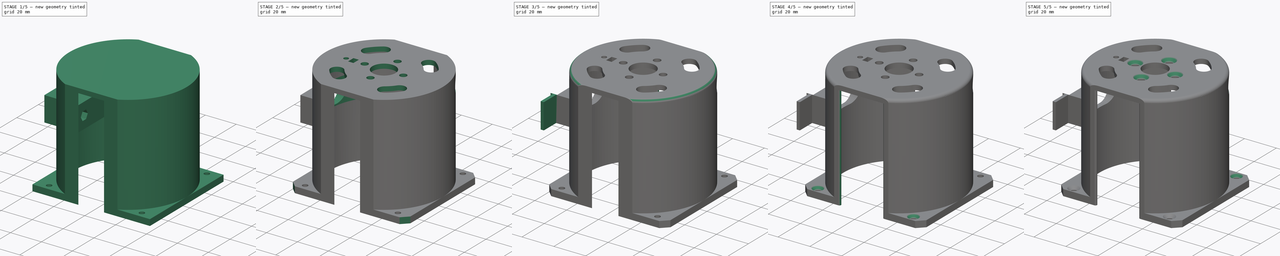
[diagram: build sequence overview — one tinted view per stage of 5, left to right]
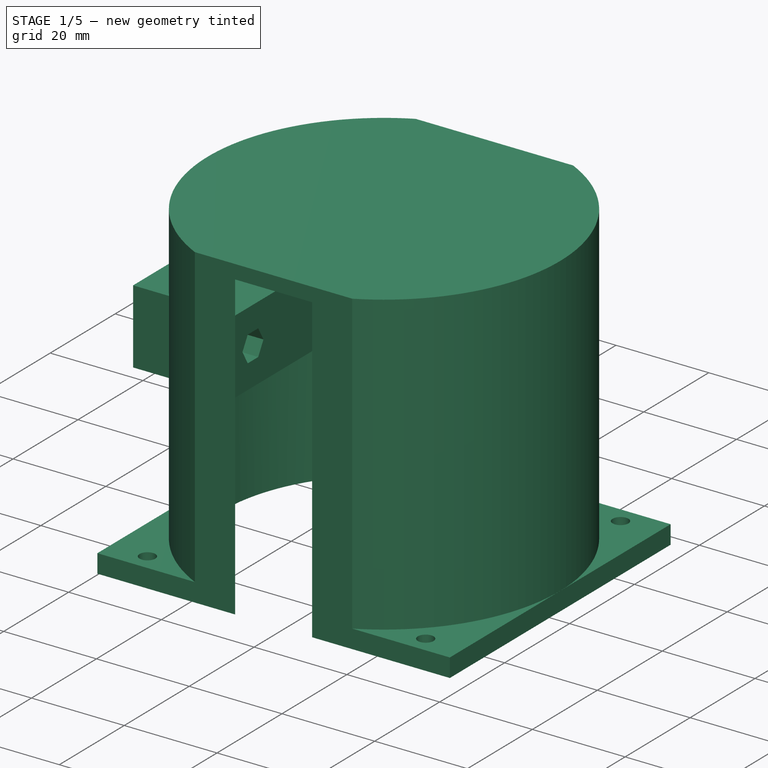
[diagram: stage 1 of 5 — iso view after this stage's code; geometry added in this stage tinted green]
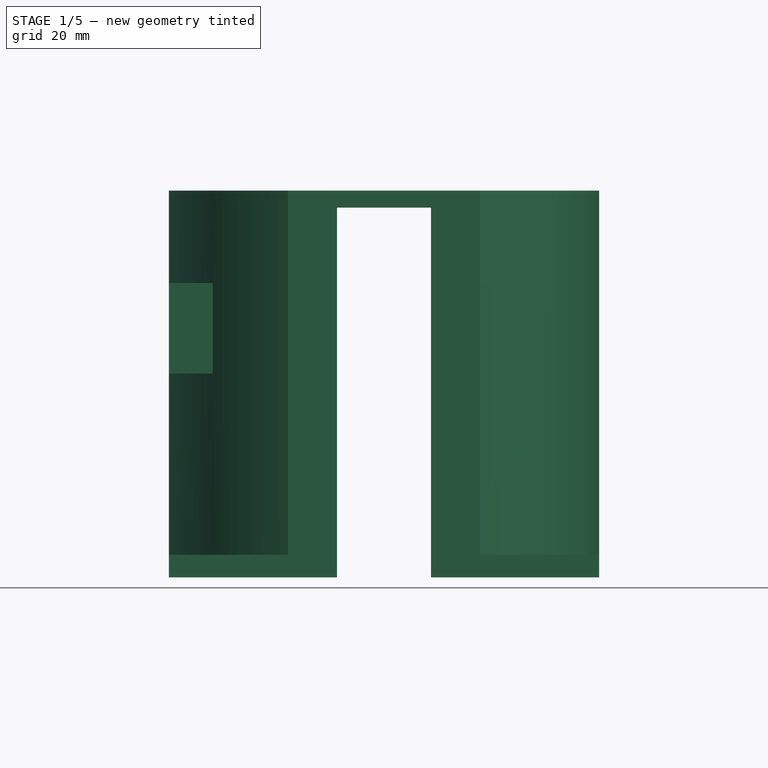
[diagram: stage 1 of 5 — front view after this stage's code; geometry added in this stage tinted green]
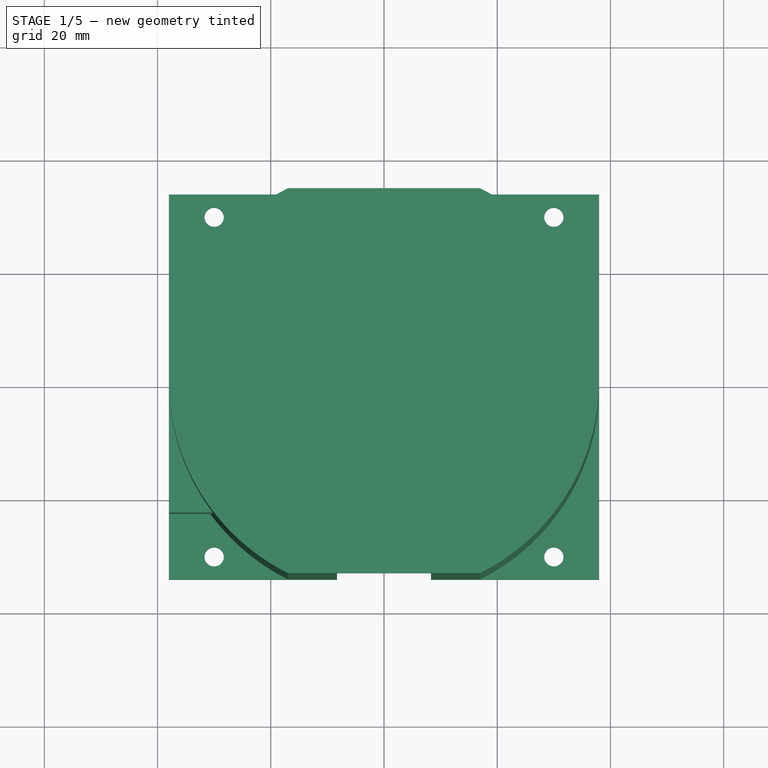
[diagram: stage 1 of 5 — top view after this stage's code; geometry added in this stage tinted green]
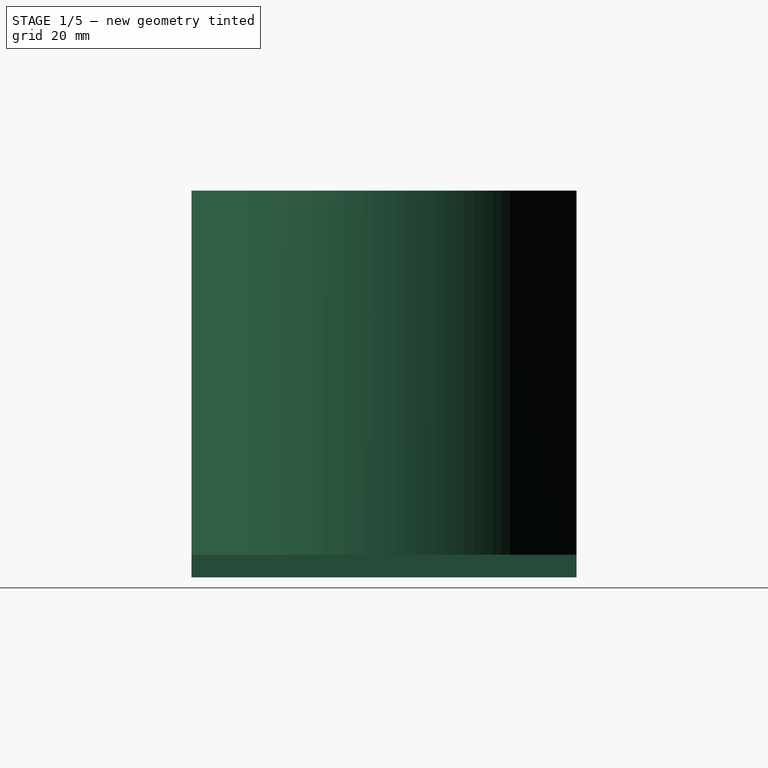
[diagram: stage 1 of 5 — right view after this stage's code; geometry added in this stage tinted green]
FCSTD DOCUMENT  (FreeCAD 0.16R6712 (Git))
Label: MotorMountPD5060v2
License: All rights reserved
LicenseURL: http://en.wikipedia.org/wiki/All_rights_reserved
objects: Sketcher::SketchObject×13, PartDesign::Pocket×8, PartDesign::Chamfer×8, PartDesign::Fillet×7, PartDesign::Pad×5
note: 54 computed .brp shape members not serialized (recipe doc carries the construction recipe); baked Part::Feature solids carry a one-line shape summary decoded from their .brp

FEATURE [Sketcher::SketchObject] Sketch
  sketch-geometry (14):
    g0: Circle CenterX=0 CenterY=0 CenterZ=0 NormalX=0 NormalY=0 NormalZ=1 Radius=35
    g1: LineSegment [constr] StartX=-30 StartY=30 StartZ=0 EndX=30 EndY=30 EndZ=0
    g2: LineSegment [constr] StartX=30 StartY=30 StartZ=0 EndX=30 EndY=-30 EndZ=0
    g3: LineSegment [constr] StartX=30 StartY=-30 StartZ=0 EndX=-30 EndY=-30 EndZ=0
    g4: LineSegment [constr] StartX=-30 StartY=-30 StartZ=0 EndX=-30 EndY=30 EndZ=0
    g5: Circle CenterX=-30 CenterY=30 CenterZ=0 NormalX=0 NormalY=0 NormalZ=1 Radius=1.7
    g6: Circle CenterX=30 CenterY=30 CenterZ=0 NormalX=0 NormalY=0 NormalZ=1 Radius=1.7
    g7: Circle CenterX=30 CenterY=-30 CenterZ=0 NormalX=0 NormalY=0 NormalZ=1 Radius=1.7
    g8: Circle CenterX=-30 CenterY=-30 CenterZ=0 NormalX=0 NormalY=0 NormalZ=1 Radius=1.7
    g9: Circle [constr] CenterX=30 CenterY=30 CenterZ=0 NormalX=0 NormalY=0 NormalZ=1 Radius=3
    g10: LineSegment StartX=-38 StartY=38 StartZ=0 EndX=38 EndY=38 EndZ=0
    g11: LineSegment StartX=38 StartY=38 StartZ=0 EndX=38 EndY=-38 EndZ=0
    g12: LineSegment StartX=38 StartY=-38 StartZ=0 EndX=-38 EndY=-38 EndZ=0
    g13: LineSegment StartX=-38 StartY=-38 StartZ=0 EndX=-38 EndY=38 EndZ=0
  constraints (33):
    c: Radius(g0) = 35
    c: Coincident(g1,g2)
    c: Coincident(g2,g3)
    c: Coincident(g3,g4)
    c: Coincident(g4,g1)
    c: Horizontal(g1)
    c: Horizontal(g3)
    c: Vertical(g2)
    c: Vertical(g4)
    c: Coincident(g5,g1)
    c: Coincident(g6,g1)
    c: Coincident(g7,g2)
    c: Coincident(g8,g3)
    c: Radius(g5) = 1.7
    c: Equal(g5,g8)
    c: Equal(g5,g7)
    c: Equal(g5,g6)
    c: Symmetric(g1,g2,g-1)
    c: Equal(g1,g2)
    c: Coincident(g9,g1)
    c: Radius(g9) = 3
    c: DistanceX(g1,g1) = 60
    c: Coincident(g10,g11)
    c: Coincident(g11,g12)
    c: Coincident(g12,g13)
    c: Coincident(g13,g10)
    c: Horizontal(g10)
    c: Horizontal(g12)
    c: Vertical(g11)
    c: Vertical(g13)
    c: Symmetric(g11,g10,g-1)
    c: Equal(g13,g10)
    c: DistanceY(g13,g13) = 76
FEATURE [PartDesign::Pad] Pad
  Length = 65.3
  Length2 = 100
  Sketch = -> Sketch
  Type = 0
FEATURE [Sketcher::SketchObject] Sketch001
  Placement = pos=(0,0,65.3) rot=(0,0,1;0rad)
  Support = -> Pad [Face11]
  sketch-geometry (2):
    g0: Circle CenterX=0 CenterY=0 CenterZ=0 NormalX=0 NormalY=0 NormalZ=1 Radius=38
    g1: Circle CenterX=0 CenterY=0 CenterZ=0 NormalX=0 NormalY=0 NormalZ=1 Radius=60
  constraints (4):
    c: Coincident(g0,g-1)
    c: Coincident(g1,g-1)
    c: Radius(g1) = 60
    c: Radius(g0) = 38
FEATURE [PartDesign::Pocket] Pocket
  Length = 61.3
  Sketch = -> Sketch001
  Type = 0
FEATURE [Sketcher::SketchObject] Sketch002
  Placement = pos=(0,0,65.3) rot=(0,0,1;0rad)
  Support = -> Pocket [Face17]
  sketch-geometry (1):
    g0: Circle CenterX=0 CenterY=0 CenterZ=0 NormalX=0 NormalY=0 NormalZ=1 Radius=38
  constraints (2):
    c: Coincident(g0,g-1)
    c: Radius(g0) = 38
FEATURE [PartDesign::Pad] Pad001
  Length = 3
  Length2 = 100
  Sketch = -> Sketch002
  Type = 0
FEATURE [Sketcher::SketchObject] Sketch003
  Placement = pos=(0,0,68.3) rot=(0,0,1;0rad)
  Support = -> Pad001 [Face21]
  sketch-geometry (8):
    g0: LineSegment StartX=-40 StartY=34 StartZ=0 EndX=40 EndY=34 EndZ=0
    g1: LineSegment StartX=40 StartY=34 StartZ=0 EndX=40 EndY=-34 EndZ=0
    g2: LineSegment StartX=40 StartY=-34 StartZ=0 EndX=-40 EndY=-34 EndZ=0
    g3: LineSegment StartX=-40 StartY=-34 StartZ=0 EndX=-40 EndY=34 EndZ=0
    g4: LineSegment StartX=-50 StartY=50 StartZ=0 EndX=50 EndY=50 EndZ=0
    g5: LineSegment StartX=50 StartY=50 StartZ=0 EndX=50 EndY=-50 EndZ=0
    g6: LineSegment StartX=50 StartY=-50 StartZ=0 EndX=-50 EndY=-50 EndZ=0
    g7: LineSegment StartX=-50 StartY=-50 StartZ=0 EndX=-50 EndY=50 EndZ=0
  constraints (22):
    c: Coincident(g0,g1)
    c: Coincident(g1,g2)
    c: Coincident(g2,g3)
    c: Coincident(g3,g0)
    c: Horizontal(g0)
    c: Horizontal(g2)
    c: Vertical(g1)
    c: Vertical(g3)
    c: Symmetric(g0,g2,g-1)
    c: DistanceY(g1,g1) = 68
    c: DistanceX(g0,g0) = 80
    c: Coincident(g4,g5)
    c: Coincident(g5,g6)
    c: Coincident(g6,g7)
    c: Coincident(g7,g4)
    c: Horizontal(g4)
    c: Horizontal(g6)
    c: Vertical(g5)
    c: Vertical(g7)
    c: Symmetric(g4,g6,g-1)
    c: Equal(g7,g4)
    c: DistanceX(g4,g4) = 100
FEATURE [PartDesign::Pocket] Pocket001
  Length = 5
  Sketch = -> Sketch003
  Type = 1
FEATURE [Sketcher::SketchObject] Sketch004
  Placement = pos=(-38,0,0) rot=(0.57735,-0.57735,-0.57735;2.0944rad)
  Support = -> Pocket001 [Face15]
  sketch-geometry (14):
    g0: LineSegment StartX=-23 StartY=52 StartZ=0 EndX=23 EndY=52 EndZ=0
    g1: LineSegment StartX=23 StartY=52 StartZ=0 EndX=23 EndY=36 EndZ=0
    g2: LineSegment StartX=23 StartY=36 StartZ=0 EndX=-23 EndY=36 EndZ=0
    g3: LineSegment StartX=-23 StartY=36 StartZ=0 EndX=-23 EndY=52 EndZ=0
    g4: Circle [constr] CenterX=-17.5 CenterY=44 CenterZ=0 NormalX=0 NormalY=0 NormalZ=1 Radius=1.7
    g5: Circle [constr] CenterX=17.5 CenterY=44 CenterZ=0 NormalX=0 NormalY=0 NormalZ=1 Radius=1.7
    g6: GeomPoint [constr] X=0 Y=44 Z=0
    g7: LineSegment [constr] StartX=-17.5 StartY=44 StartZ=0 EndX=17.5 EndY=44 EndZ=0
    g8: LineSegment [constr] StartX=23 StartY=52 StartZ=0 EndX=23 EndY=36 EndZ=0
    g9: LineSegment [constr] StartX=-23 StartY=52 StartZ=0 EndX=-23 EndY=36 EndZ=0
    g10: ArcOfCircle [constr] CenterX=-5 CenterY=44 CenterZ=0 NormalX=0 NormalY=0 NormalZ=1 Radius=7 StartAngle=1.5708 EndAngle=4.71239
    g11: ArcOfCircle [constr] CenterX=5 CenterY=44 CenterZ=0 NormalX=0 NormalY=0 NormalZ=1 Radius=7 StartAngle=4.71239 EndAngle=7.85398
    g12: LineSegment [constr] StartX=-5 StartY=37 StartZ=0 EndX=5 EndY=37 EndZ=0
    g13: LineSegment [constr] StartX=-5 StartY=51 StartZ=0 EndX=5 EndY=51 EndZ=0
  constraints (36):
    c: Coincident(g0,g1)
    c: Coincident(g1,g2)
    c: Coincident(g2,g3)
    c: Coincident(g3,g0)
    c: Horizontal(g2)
    c: Vertical(g1)
    c: Vertical(g3)
    c: Symmetric(g0,g0,g-2)
    c: DistanceX(g0,g0) = 46
    c: DistanceY(g1,g0) = 16
    c: Symmetric(g2,g0,g6)
    c: Symmetric(g4,g5,g6)
    c: Radius(g4) = 1.7
    c: Equal(g4,g5)
    c: DistanceX(g4,g5) = 35
    c: Coincident(g7,g4)
    c: Coincident(g7,g5)
    c: Horizontal(g7)
    c: DistanceY(g-1,g6) = 44
    c: PointOnObject(g8,g0)
    c: Vertical(g8)
    c: PointOnObject(g9,g0)
    c: Vertical(g9)
    c: Symmetric(g8,g9,g-2)
    c: DistanceX(g9,g8) = 46
    c: PointOnObject(g9,g2)
    c: PointOnObject(g8,g2)
    c: Tangent(g10,g13) = 1.5708
    c: Tangent(g10,g12) = -1.5708
    c: Tangent(g12,g11) = -1.5708
    c: Tangent(g13,g11) = 1.5708
    c: Horizontal(g12)
    c: Equal(g10,g11)
    c: Symmetric(g11,g10,g6)
    c: DistanceX(g10,g11) = 10
    c: DistanceY(g11,g11) = 14
FEATURE [PartDesign::Pad] Pad002
  Length = 22
  Length2 = 100
  Reversed = true
  Sketch = -> Sketch004
  Type = 0
FEATURE [Sketcher::SketchObject] Sketch029
  Placement = pos=(-16,0,0) rot=(0.57735,0.57735,0.57735;2.0944rad)
  Support = -> Pad002 [Face38]
  sketch-geometry (15):
    g0: LineSegment StartX=-15.8834 StartY=41.2 StartZ=0 EndX=-14.2668 EndY=44 EndZ=0
    g1: LineSegment StartX=-14.2668 StartY=44 StartZ=0 EndX=-15.8834 EndY=46.8 EndZ=0
    g2: LineSegment StartX=-15.8834 StartY=46.8 StartZ=0 EndX=-19.1166 EndY=46.8 EndZ=0
    g3: LineSegment StartX=-19.1166 StartY=46.8 StartZ=0 EndX=-20.7332 EndY=44 EndZ=0
    g4: LineSegment StartX=-20.7332 StartY=44 StartZ=0 EndX=-19.1166 EndY=41.2 EndZ=0
    g5: LineSegment StartX=-19.1166 StartY=41.2 StartZ=0 EndX=-15.8834 EndY=41.2 EndZ=0
    g6: Circle [constr] CenterX=-17.5 CenterY=44 CenterZ=0 NormalX=0 NormalY=0 NormalZ=1 Radius=3.23316
    g7: LineSegment StartX=14.2668 StartY=44 StartZ=0 EndX=15.8834 EndY=41.2 EndZ=0
    g8: LineSegment StartX=15.8834 StartY=41.2 StartZ=0 EndX=19.1166 EndY=41.2 EndZ=0
    g9: LineSegment StartX=19.1166 StartY=41.2 StartZ=0 EndX=20.7332 EndY=44 EndZ=0
    g10: LineSegment StartX=20.7332 StartY=44 StartZ=0 EndX=19.1166 EndY=46.8 EndZ=0
    g11: LineSegment StartX=19.1166 StartY=46.8 StartZ=0 EndX=15.8834 EndY=46.8 EndZ=0
    g12: LineSegment StartX=15.8834 StartY=46.8 StartZ=0 EndX=14.2668 EndY=44 EndZ=0
    g13: Circle [constr] CenterX=17.5 CenterY=44 CenterZ=0 NormalX=0 NormalY=0 NormalZ=1 Radius=3.23316
    g14: LineSegment [constr] StartX=-17.5 StartY=44 StartZ=0 EndX=17.5 EndY=44 EndZ=0
  constraints (36):
    c: Coincident(g0,g1)
    c: Coincident(g1,g2)
    c: Coincident(g2,g3)
    c: Coincident(g3,g4)
    c: Coincident(g4,g5)
    c: Coincident(g5,g0)
    c: Equal(g0, g1-g5) x5
    c: PointOnObject(g0,g6)
    c: PointOnObject(g1,g6)
    c: PointOnObject(g2,g6)
    c: PointOnObject(g3,g6)
    c: PointOnObject(g4,g6)
    c: PointOnObject(g5,g6)
    c: Horizontal(g5)
    c: DistanceY(g0,g1) = 5.6
    c: Coincident(g7,g8)
    c: Coincident(g8,g9)
    c: Coincident(g9,g10)
    c: Coincident(g10,g11)
    c: Coincident(g11,g12)
    c: Coincident(g12,g7)
    c: Equal(g7, g8-g12) x5
    c: PointOnObject(g7,g13)
    c: PointOnObject(g8,g13)
    c: PointOnObject(g9,g13)
    c: PointOnObject(g10,g13)
    c: PointOnObject(g11,g13)
    c: PointOnObject(g12,g13)
    c: Horizontal(g11)
    c: DistanceY(g7,g11) = 5.6
    c: Coincident(g14,g6)
    c: Coincident(g14,g13)
    c: Horizontal(g14)
    c: DistanceX(g14,g14) = 35
    c: Symmetric(g6,g13,g-2)
    c: DistanceY(g-1,g6) = 44
FEATURE [PartDesign::Pocket] Pocket003
  Length = 20
  Sketch = -> Sketch029
  Type = 0
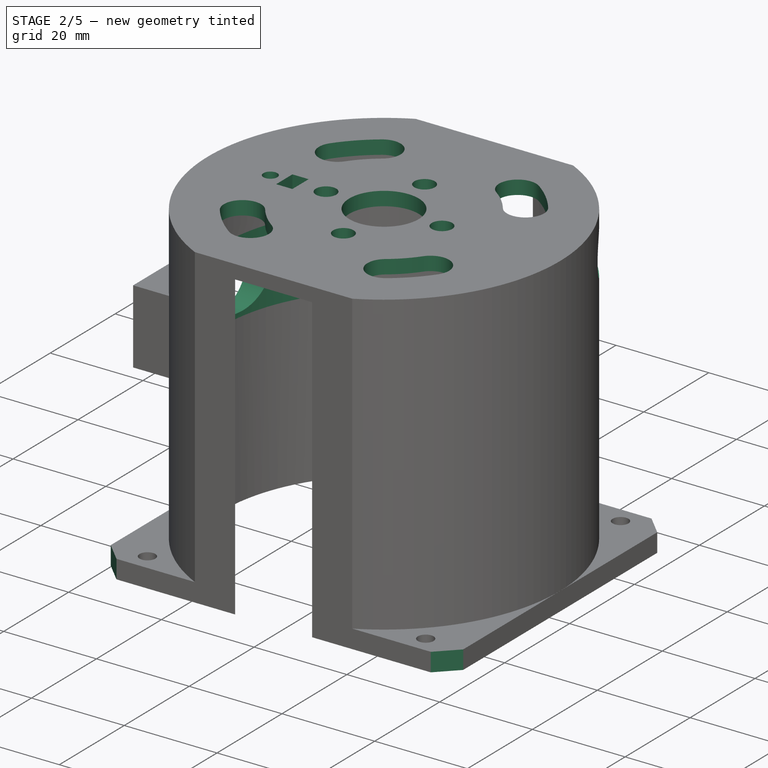
[diagram: stage 2 of 5 — iso view after this stage's code; geometry added in this stage tinted green]
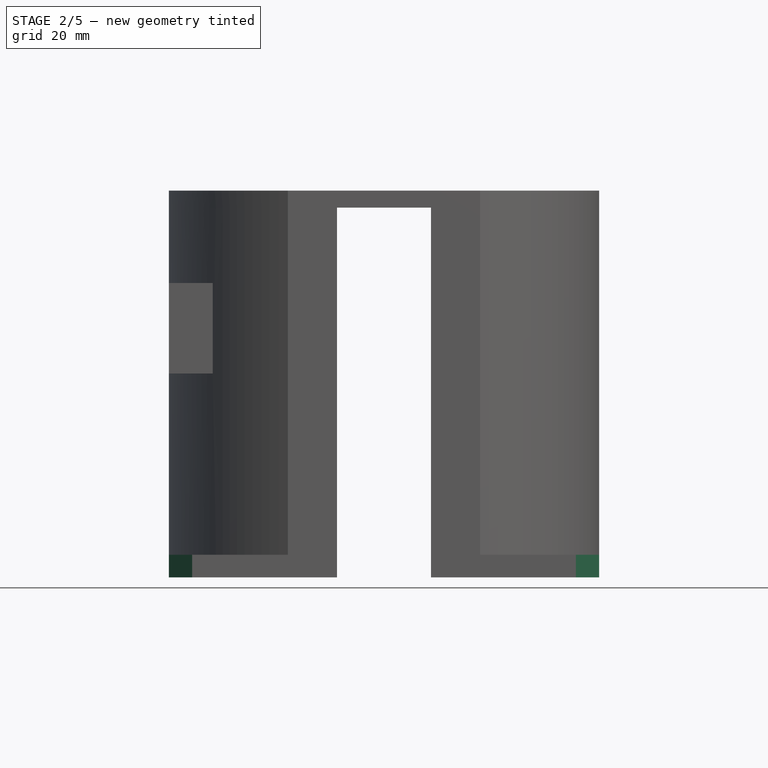
[diagram: stage 2 of 5 — front view after this stage's code; geometry added in this stage tinted green]
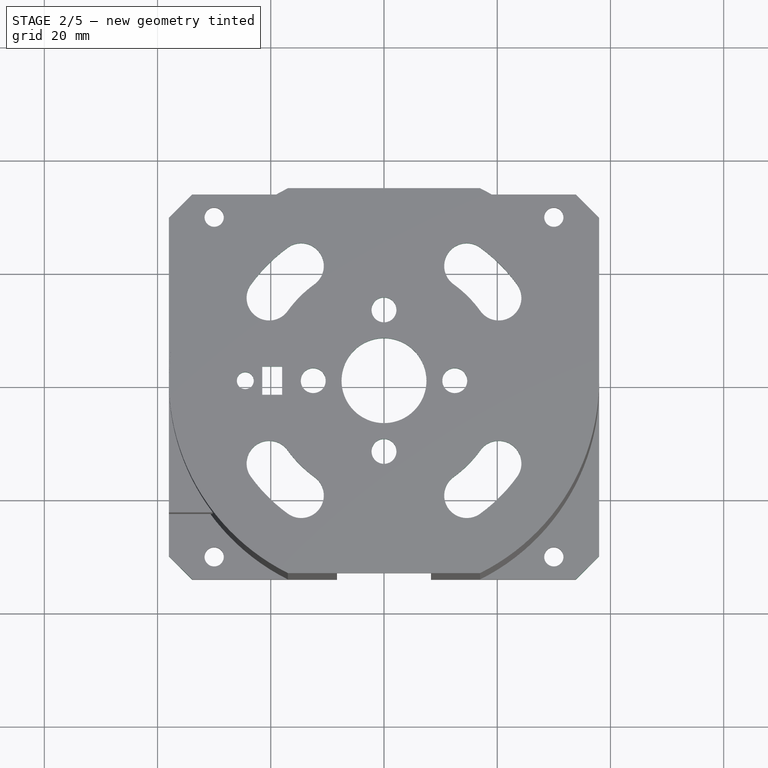
[diagram: stage 2 of 5 — top view after this stage's code; geometry added in this stage tinted green]
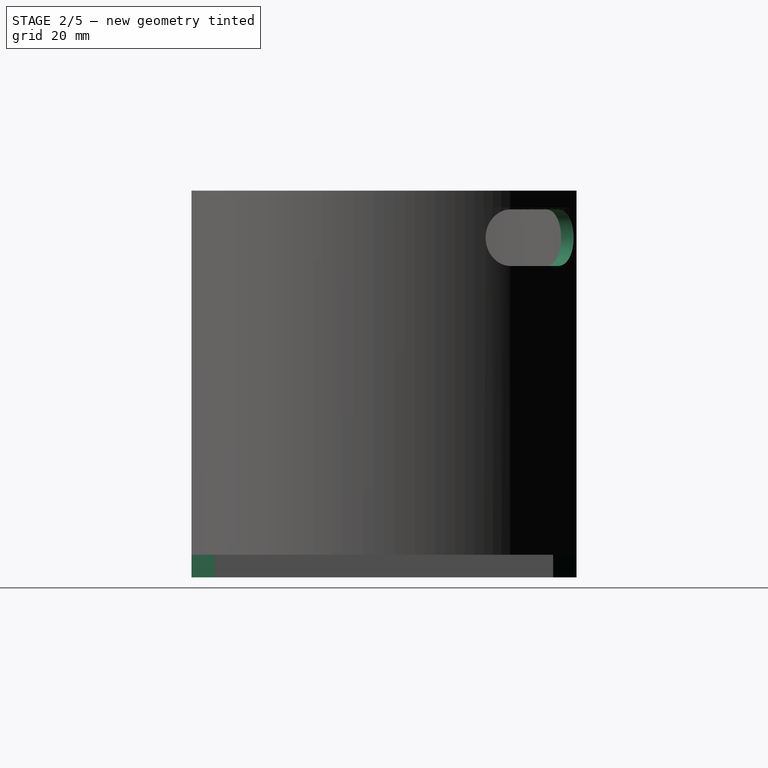
[diagram: stage 2 of 5 — right view after this stage's code; geometry added in this stage tinted green]
FEATURE [Sketcher::SketchObject] Sketch030
  Placement = pos=(0,0,36) rot=(1,0,0;3.14159rad)
  Support = -> Pocket003 [Face36]
  sketch-geometry (1):
    g0: Circle CenterX=0 CenterY=0 CenterZ=0 NormalX=0 NormalY=0 NormalZ=1 Radius=35
  constraints (2):
    c: Coincident(g0,g-1)
    c: Radius(g0) = 35
FEATURE [PartDesign::Pocket] Pocket004
  Length = 18
  Sketch = -> Sketch030
  Type = 0
FEATURE [Sketcher::SketchObject] Sketch031
  Placement = pos=(-38,0,0) rot=(0.57735,-0.57735,-0.57735;2.0944rad)
  Support = -> Pocket004 [Face17]
  sketch-geometry (14):
    g0: LineSegment [constr] StartX=-23 StartY=52 StartZ=0 EndX=23 EndY=52 EndZ=0
    g1: LineSegment [constr] StartX=23 StartY=52 StartZ=0 EndX=23 EndY=36 EndZ=0
    g2: LineSegment [constr] StartX=23 StartY=36 StartZ=0 EndX=-23 EndY=36 EndZ=0
    g3: LineSegment [constr] StartX=-23 StartY=36 StartZ=0 EndX=-23 EndY=52 EndZ=0
    g4: Circle CenterX=-17.5 CenterY=44 CenterZ=0 NormalX=0 NormalY=0 NormalZ=1 Radius=1.7
    g5: Circle CenterX=17.5 CenterY=44 CenterZ=0 NormalX=0 NormalY=0 NormalZ=1 Radius=1.7
    g6: GeomPoint [constr] X=0 Y=44 Z=0
    g7: LineSegment [constr] StartX=-17.5 StartY=44 StartZ=0 EndX=17.5 EndY=44 EndZ=0
    g8: LineSegment [constr] StartX=23 StartY=52 StartZ=0 EndX=23 EndY=36 EndZ=0
    g9: LineSegment [constr] StartX=-23 StartY=52 StartZ=0 EndX=-23 EndY=36 EndZ=0
    g10: ArcOfCircle CenterX=-5 CenterY=44 CenterZ=0 NormalX=0 NormalY=0 NormalZ=1 Radius=7 StartAngle=1.5708 EndAngle=4.71239
    g11: ArcOfCircle CenterX=5 CenterY=44 CenterZ=0 NormalX=0 NormalY=0 NormalZ=1 Radius=7 StartAngle=4.71239 EndAngle=7.85398
    g12: LineSegment StartX=-5 StartY=37 StartZ=0 EndX=5 EndY=37 EndZ=0
    g13: LineSegment StartX=-5 StartY=51 StartZ=0 EndX=5 EndY=51 EndZ=0
  constraints (36):
    c: Coincident(g0,g1)
    c: Coincident(g1,g2)
    c: Coincident(g2,g3)
    c: Coincident(g3,g0)
    c: Horizontal(g2)
    c: Vertical(g1)
    c: Vertical(g3)
    c: Symmetric(g0,g0,g-2)
    c: DistanceX(g0,g0) = 46
    c: DistanceY(g1,g0) = 16
    c: Symmetric(g2,g0,g6)
    c: Symmetric(g4,g5,g6)
    c: Radius(g4) = 1.7
    c: Equal(g4,g5)
    c: DistanceX(g4,g5) = 35
    c: Coincident(g7,g4)
    c: Coincident(g7,g5)
    c: Horizontal(g7)
    c: DistanceY(g-1,g6) = 44
    c: PointOnObject(g8,g0)
    c: Vertical(g8)
    c: PointOnObject(g9,g0)
    c: Vertical(g9)
    c: Symmetric(g8,g9,g-2)
    c: DistanceX(g9,g8) = 46
    c: PointOnObject(g9,g2)
    c: PointOnObject(g8,g2)
    c: Tangent(g10,g13) = 1.5708
    c: Tangent(g10,g12) = -1.5708
    c: Tangent(g12,g11) = -1.5708
    c: Tangent(g13,g11) = 1.5708
    c: Horizontal(g12)
    c: Equal(g10,g11)
    c: Symmetric(g11,g10,g6)
    c: DistanceX(g10,g11) = 10
    c: DistanceY(g11,g11) = 14
FEATURE [PartDesign::Pocket] Pocket005
  Length = 30
  Sketch = -> Sketch031
  Type = 0
FEATURE [Sketcher::SketchObject] Sketch022  label="MotorMountScrewsAndVents"
  Placement = pos=(0,0,68.3) rot=(0,0,1;0rad)
  Support = -> Pocket005 [Face11]
  sketch-geometry (38):
    g0: Circle CenterX=0 CenterY=0 CenterZ=0 NormalX=0 NormalY=0 NormalZ=1 Radius=7.5
    g1: Circle [constr] CenterX=0 CenterY=0 CenterZ=0 NormalX=0 NormalY=0 NormalZ=1 Radius=25
    g2: ArcOfCircle CenterX=-20.2708 CenterY=14.632 CenterZ=0 NormalX=0 NormalY=0 NormalZ=1 Radius=4 StartAngle=2.51637 EndAngle=5.65796
    g3: ArcOfCircle CenterX=-14.632 CenterY=20.2708 CenterZ=0 NormalX=0 NormalY=0 NormalZ=1 Radius=4 StartAngle=5.33762 EndAngle=8.47921
    g4: GeomPoint [constr] X=-17.6777 Y=17.6777 Z=0
    g5: ArcOfCircle CenterX=0 CenterY=0 CenterZ=0 NormalX=0 NormalY=0 NormalZ=1 Radius=29 StartAngle=2.19602 EndAngle=2.51637
    g6: ArcOfCircle CenterX=0 CenterY=0 CenterZ=0 NormalX=0 NormalY=0 NormalZ=1 Radius=21 StartAngle=2.19602 EndAngle=2.51637
    g7: LineSegment [constr] StartX=0 StartY=0 StartZ=0 EndX=-16.9732 EndY=23.5141 EndZ=0
    g8: LineSegment [constr] StartX=0 StartY=0 StartZ=0 EndX=-23.5141 EndY=16.9732 EndZ=0
    g9: LineSegment [constr] StartX=0 StartY=0 StartZ=0 EndX=-17.6777 EndY=17.6777 EndZ=0
    g10: LineSegment [constr] StartX=0 StartY=0 StartZ=0 EndX=23.5141 EndY=-16.9732 EndZ=0
    g11: ArcOfCircle CenterX=0 CenterY=0 CenterZ=0 NormalX=0 NormalY=0 NormalZ=1 Radius=21 StartAngle=5.33762 EndAngle=5.65796
    g12: ArcOfCircle CenterX=14.632 CenterY=-20.2708 CenterZ=0 NormalX=0 NormalY=0 NormalZ=1 Radius=4 StartAngle=2.19602 EndAngle=5.33762
    g13: ArcOfCircle CenterX=0 CenterY=0 CenterZ=0 NormalX=0 NormalY=0 NormalZ=1 Radius=29 StartAngle=5.33762 EndAngle=5.65796
    g14: ArcOfCircle CenterX=20.2708 CenterY=-14.632 CenterZ=0 NormalX=0 NormalY=0 NormalZ=1 Radius=4 StartAngle=5.65796 EndAngle=8.79955
    g15: LineSegment [constr] StartX=0 StartY=0 StartZ=0 EndX=16.9732 EndY=-23.5141 EndZ=0
    g16: LineSegment [constr] StartX=0 StartY=0 StartZ=0 EndX=23.5141 EndY=16.9732 EndZ=0
    g17: LineSegment [constr] StartX=0 StartY=0 StartZ=0 EndX=16.9732 EndY=23.5141 EndZ=0
    g18: ArcOfCircle CenterX=0 CenterY=0 CenterZ=0 NormalX=0 NormalY=0 NormalZ=1 Radius=29 StartAngle=0.625227 EndAngle=0.945569
    g19: ArcOfCircle CenterX=20.2708 CenterY=14.632 CenterZ=0 NormalX=0 NormalY=0 NormalZ=1 Radius=4 StartAngle=3.76682 EndAngle=6.90841
    g20: ArcOfCircle CenterX=0 CenterY=0 CenterZ=0 NormalX=0 NormalY=0 NormalZ=1 Radius=21 StartAngle=0.625227 EndAngle=0.945569
    g21: ArcOfCircle CenterX=14.632 CenterY=20.2708 CenterZ=0 NormalX=0 NormalY=0 NormalZ=1 Radius=4 StartAngle=0.945569 EndAngle=4.08716
    g22: ArcOfCircle CenterX=-14.632 CenterY=-20.2708 CenterZ=0 NormalX=0 NormalY=0 NormalZ=1 Radius=4 StartAngle=4.08716 EndAngle=7.22875
    g23: LineSegment [constr] StartX=0 StartY=0 StartZ=0 EndX=-16.9732 EndY=-23.5141 EndZ=0
    g24: ArcOfCircle CenterX=0 CenterY=0 CenterZ=0 NormalX=0 NormalY=0 NormalZ=1 Radius=29 StartAngle=3.76682 EndAngle=4.08716
    g25: ArcOfCircle CenterX=0 CenterY=0 CenterZ=0 NormalX=0 NormalY=0 NormalZ=1 Radius=21 StartAngle=3.76682 EndAngle=4.08716
    g26: ArcOfCircle CenterX=-20.2708 CenterY=-14.632 CenterZ=0 NormalX=0 NormalY=0 NormalZ=1 Radius=4 StartAngle=0.625227 EndAngle=3.76682
    g27: LineSegment [constr] StartX=0 StartY=0 StartZ=0 EndX=-23.5141 EndY=-16.9732 EndZ=0
    g28: Circle CenterX=-24.5 CenterY=0 CenterZ=0 NormalX=0 NormalY=0 NormalZ=1 Radius=1.5
    g29: LineSegment StartX=-21.5 StartY=2.5 StartZ=0 EndX=-18 EndY=2.5 EndZ=0
    g30: LineSegment StartX=-18 StartY=2.5 StartZ=0 EndX=-18 EndY=-2.5 EndZ=0
    g31: LineSegment StartX=-18 StartY=-2.5 StartZ=0 EndX=-21.5 EndY=-2.5 EndZ=0
    g32: LineSegment StartX=-21.5 StartY=-2.5 StartZ=0 EndX=-21.5 EndY=2.5 EndZ=0
    g33: Circle CenterX=0 CenterY=-12.5 CenterZ=0 NormalX=0 NormalY=0 NormalZ=1 Radius=2.2
    g34: Circle CenterX=0 CenterY=12.5 CenterZ=0 NormalX=0 NormalY=0 NormalZ=1 Radius=2.2
    g35: Circle CenterX=12.5 CenterY=0 CenterZ=0 NormalX=0 NormalY=0 NormalZ=1 Radius=2.2
    g36: Circle CenterX=-12.5 CenterY=0 CenterZ=0 NormalX=0 NormalY=0 NormalZ=1 Radius=2.2
    g37: Circle [constr] CenterX=0 CenterY=0 CenterZ=0 NormalX=0 NormalY=0 NormalZ=1 Radius=12.5
  constraints (113):
    c: Coincident(g0,g-1)
    c: Radius(g0) = 7.5
    c: Coincident(g1,g-1)
    c: Radius(g1) = 25
    c: PointOnObject(g3,g1)
    c: Radius(g2) = 4
    c: PointOnObject(g4,g1)
    c: PointOnObject(g4,g3)
    c: PointOnObject(g4,g2)
    c: Coincident(g5,g-1)
    c: Coincident(g6,g-1)
    c: Coincident(g3,g5)
    c: Coincident(g2,g6)
    c: Coincident(g3,g6)
    c: Coincident(g5,g2)
    c: Coincident(g2,g6)
    c: Coincident(g7,g-1)
    c: Coincident(g7,g3)
    c: Coincident(g8,g-1)
    c: PointOnObject(g2,g8)
    c: PointOnObject(g2,g8)
    c: PointOnObject(g3,g7)
    c: PointOnObject(g3,g7)
    c: Coincident(g8,g2)
    c: Coincident(g9,g-1)
    c: Coincident(g9,g4)
    c: Radius(g14) = 4
    c: Equal(g14,g12)
    c: Coincident(g12,g13)
    c: Coincident(g14,g11)
    c: Coincident(g12,g11)
    c: Coincident(g13,g14)
    c: Coincident(g14,g11)
    c: Coincident(g15,g12)
    c: PointOnObject(g14,g10)
    c: PointOnObject(g14,g10)
    c: PointOnObject(g12,g15)
    c: PointOnObject(g12,g15)
    c: Coincident(g10,g14)
    c: Coincident(g13,g11)
    c: Coincident(g13,g15)
    c: Coincident(g13,g10)
    c: Coincident(g13,g-1)
    c: PointOnObject(g12,g1)
    c: Parallel(g7,g15)
    c: Parallel(g8,g10)
    c: Radius(g19) = 4
    c: Coincident(g21,g18)
    c: Coincident(g19,g20)
    c: Coincident(g21,g20)
    c: Coincident(g18,g19)
    c: Coincident(g19,g20)
    c: Coincident(g17,g21)
    c: PointOnObject(g19,g16)
    c: PointOnObject(g19,g16)
    c: PointOnObject(g21,g17)
    c: PointOnObject(g21,g17)
    c: Coincident(g16,g19)
    c: Coincident(g16,g20)
    c: Coincident(g16,g18)
    c: Coincident(g16,g17)
    c: Coincident(g16,g-1)
    c: PointOnObject(g21,g1)
    c: Radius(g26) = 4
    c: Coincident(g22,g24)
    c: Coincident(g26,g25)
    c: Coincident(g22,g25)
    c: Coincident(g24,g26)
    c: Coincident(g26,g25)
    c: Coincident(g23,g22)
    c: PointOnObject(g26,g27)
    c: PointOnObject(g26,g27)
    c: PointOnObject(g22,g23)
    c: PointOnObject(g22,g23)
    c: Coincident(g27,g26)
    c: Coincident(g27,g25)
    c: Coincident(g27,g24)
    c: Coincident(g27,g23)
    c: Parallel(g23,g17)
    c: Parallel(g16,g27)
    c: Coincident(g23,g-1)
    c: PointOnObject(g26,g1)
    c: Symmetric(g26,g2,g-1)
    c: Symmetric(g22,g12,g-2)
    c: Coincident(g29,g30)
    c: Coincident(g30,g31)
    c: Coincident(g31,g32)
    c: Coincident(g32,g29)
    c: Horizontal(g29)
    c: Horizontal(g31)
    c: Vertical(g30)
    c: Vertical(g32)
    c: DistanceX(g29,g29) = 3.5
    c: DistanceY(g30,g29) = 5
    c: Symmetric(g31,g29,g-1)
    c: DistanceX(g28,g29) = 3
    c: Radius(g28) = 1.5
    c: PointOnObject(g33,g-2)
    c: PointOnObject(g34,g-2)
    c: Equal(g33,g35)
    c: Equal(g35,g36)
    c: Equal(g36,g34)
    c: Radius(g37) = 12.5
    c: PointOnObject(g33,g37)
    c: Coincident(g37,g-1)
    c: PointOnObject(g34,g37)
    c: PointOnObject(g35,g37)
    c: PointOnObject(g35,g-1)
    c: PointOnObject(g36,g-1)
    c: PointOnObject(g36,g37)
    c: PointOnObject(g28,g-1)
    c: DistanceX(g28,g36) = 12
    c: Radius(g35) = 2.2
FEATURE [PartDesign::Pocket] Pocket006
  Length = 5
  Sketch = -> Sketch022
  Type = 0
FEATURE [Sketcher::SketchObject] Sketch032
  Placement = pos=(0,0,68.3) rot=(0,0,1;0rad)
  Support = -> Pocket006 [Face11]
  sketch-geometry (8):
    g0: LineSegment StartX=-67.8823 StartY=0 StartZ=0 EndX=0 EndY=67.8823 EndZ=0
    g1: LineSegment StartX=67.8823 StartY=0 StartZ=0 EndX=0 EndY=67.8823 EndZ=0
    g2: LineSegment StartX=-67.8823 StartY=0 StartZ=0 EndX=0 EndY=-67.8823 EndZ=0
    g3: LineSegment StartX=0 StartY=-67.8823 StartZ=0 EndX=67.8823 EndY=0 EndZ=0
    g4: LineSegment StartX=-110 StartY=110 StartZ=0 EndX=110 EndY=110 EndZ=0
    g5: LineSegment StartX=110 StartY=110 StartZ=0 EndX=110 EndY=-110 EndZ=0
    g6: LineSegment StartX=110 StartY=-110 StartZ=0 EndX=-110 EndY=-110 EndZ=0
    g7: LineSegment StartX=-110 StartY=-110 StartZ=0 EndX=-110 EndY=110 EndZ=0
  constraints (25):
    c: PointOnObject(g0,g-1)
    c: PointOnObject(g0,g-2)
    c: PointOnObject(g1,g-1)
    c: Coincident(g1,g0)
    c: Coincident(g2,g0)
    c: Coincident(g3,g1)
    c: Coincident(g2,g3)
    c: PointOnObject(g2,g-2)
    c: Perpendicular(g0,g1)
    c: Perpendicular(g2,g0)
    c: Distance(g0,g1) = 96
    c: Coincident(g4,g5)
    c: Coincident(g5,g6)
    c: Coincident(g6,g7)
    c: Coincident(g7,g4)
    c: Horizontal(g4)
    c: Horizontal(g6)
    c: Vertical(g5)
    c: Vertical(g7)
    c: Equal(g3,g1)
    c: Symmetric(g6,g4,g-1)
    c: Equal(g7,g4)
    c: DistanceY(g7,g7) = 220
    c: Equal(g2,g1)
    c: Equal(g0,g1)
FEATURE [PartDesign::Pocket] Pocket007
  Length = 5
  Sketch = -> Sketch032
  Type = 1
FEATURE [Sketcher::SketchObject] Sketch033
  Placement = pos=(33.9411,33.9411,0) rot=(0.281085,0.678598,0.678598;2.59356rad)
  Support = -> Pocket007 [Face8]
  sketch-geometry (4):
    g0: ArcOfCircle CenterX=-6 CenterY=60 CenterZ=0 NormalX=0 NormalY=0 NormalZ=1 Radius=5 StartAngle=1.5708 EndAngle=4.71239
    g1: ArcOfCircle CenterX=6 CenterY=60 CenterZ=0 NormalX=0 NormalY=0 NormalZ=1 Radius=5 StartAngle=4.71239 EndAngle=7.85398
    g2: LineSegment StartX=-6 StartY=55 StartZ=0 EndX=6 EndY=55 EndZ=0
    g3: LineSegment StartX=-6 StartY=65 StartZ=0 EndX=6 EndY=65 EndZ=0
  constraints (10):
    c: Tangent(g0,g3) = 1.5708
    c: Tangent(g0,g2) = -1.5708
    c: Tangent(g2,g1) = -1.5708
    c: Tangent(g3,g1) = 1.5708
    c: Horizontal(g2)
    c: Equal(g0,g1)
    c: Symmetric(g1,g0,g-2)
    c: DistanceY(g0,g0) = 10
    c: DistanceX(g0,g1) = 12
    c: DistanceY(g-1,g0) = 65
FEATURE [PartDesign::Pocket] Pocket008
  Length = 20
  Sketch = -> Sketch033
  Type = 0
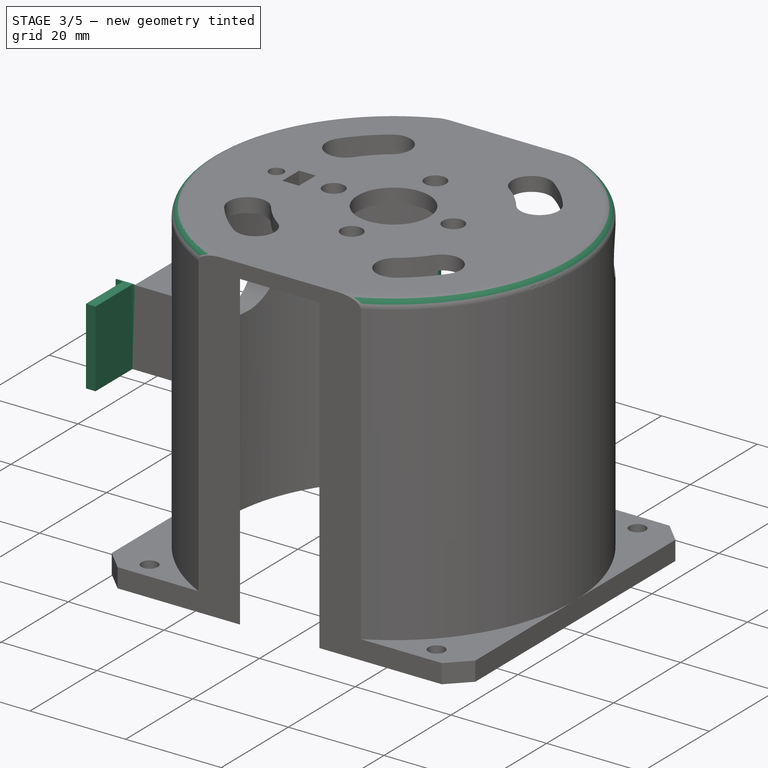
[diagram: stage 3 of 5 — iso view after this stage's code; geometry added in this stage tinted green]
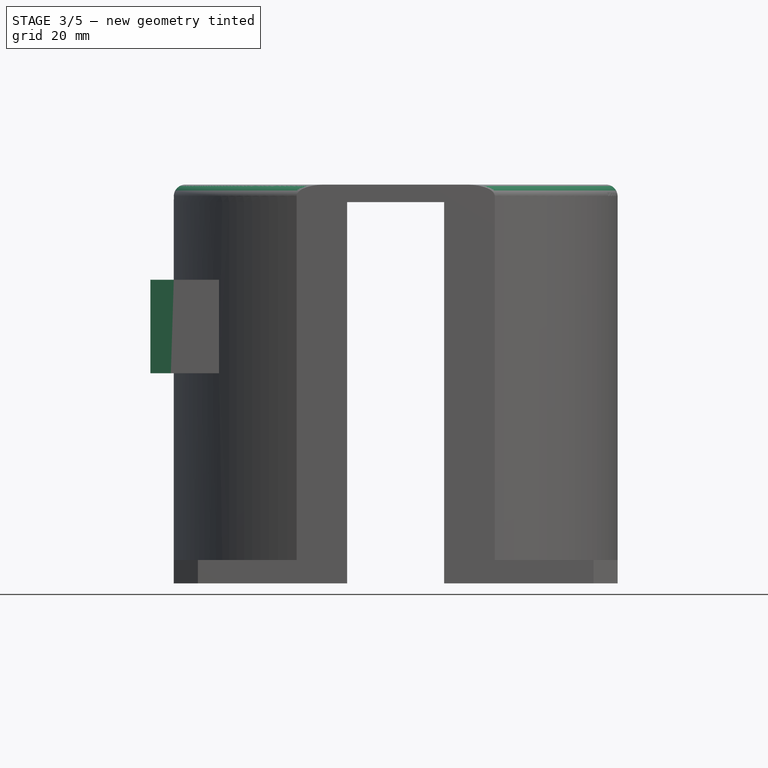
[diagram: stage 3 of 5 — front view after this stage's code; geometry added in this stage tinted green]
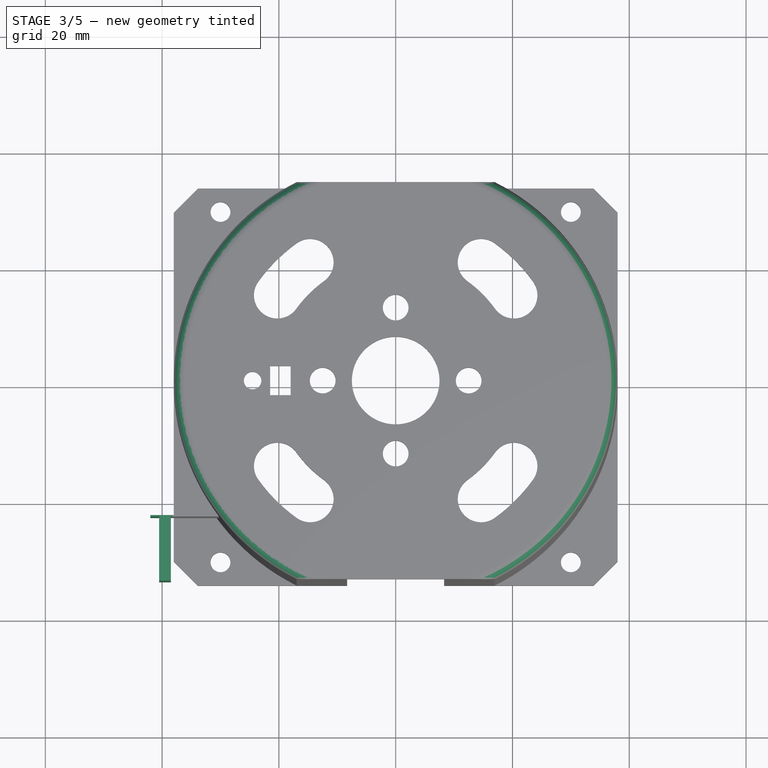
[diagram: stage 3 of 5 — top view after this stage's code; geometry added in this stage tinted green]
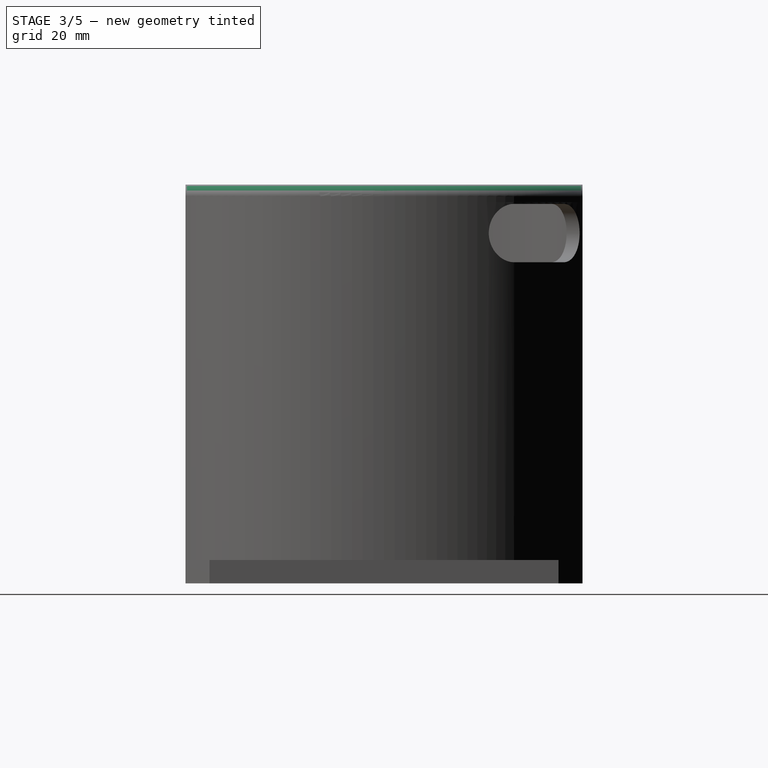
[diagram: stage 3 of 5 — right view after this stage's code; geometry added in this stage tinted green]
FEATURE [Sketcher::SketchObject] Sketch034
  Placement = pos=(0,-23,0) rot=(1,0,0;1.5708rad)
  Support = -> Pocket008 [Face61]
  sketch-geometry (4):
    g0: LineSegment StartX=-42 StartY=52 StartZ=0 EndX=-36 EndY=52 EndZ=0
    g1: LineSegment StartX=-36 StartY=52 StartZ=0 EndX=-36 EndY=36 EndZ=0
    g2: LineSegment StartX=-36 StartY=36 StartZ=0 EndX=-42 EndY=36 EndZ=0
    g3: LineSegment StartX=-42 StartY=36 StartZ=0 EndX=-42 EndY=52 EndZ=0
  constraints (12):
    c: Coincident(g0,g1)
    c: Coincident(g1,g2)
    c: Coincident(g2,g3)
    c: Coincident(g3,g0)
    c: Horizontal(g0)
    c: Horizontal(g2)
    c: Vertical(g1)
    c: Vertical(g3)
    c: DistanceY(g-1,g1) = 36
    c: DistanceX(g1,g-1) = 36
    c: DistanceX(g2,g1) = 6
    c: DistanceY(g1,g0) = 16
FEATURE [PartDesign::Pad] Pad003
  Length = 0.25
  Length2 = 100
  Reversed = true
  Sketch = -> Sketch034
  Type = 0
FEATURE [Sketcher::SketchObject] Sketch035
  Placement = pos=(0,-23,0) rot=(1,0,0;1.5708rad)
  Support = -> Pad003 [Face98]
  sketch-geometry (4):
    g0: LineSegment StartX=-40.5 StartY=52 StartZ=0 EndX=-38.5 EndY=52 EndZ=0
    g1: LineSegment StartX=-38.5 StartY=52 StartZ=0 EndX=-38.5 EndY=36 EndZ=0
    g2: LineSegment StartX=-38.5 StartY=36 StartZ=0 EndX=-40.5 EndY=36 EndZ=0
    g3: LineSegment StartX=-40.5 StartY=36 StartZ=0 EndX=-40.5 EndY=52 EndZ=0
  constraints (12):
    c: Coincident(g0,g1)
    c: Coincident(g1,g2)
    c: Coincident(g2,g3)
    c: Coincident(g3,g0)
    c: Horizontal(g0)
    c: Horizontal(g2)
    c: Vertical(g1)
    c: Vertical(g3)
    c: DistanceY(g-1,g1) = 36
    c: DistanceX(g1,g-1) = 38.5
    c: DistanceX(g0,g0) = 2
    c: DistanceY(g1,g0) = 16
FEATURE [PartDesign::Pad] Pad004
  Length = 11
  Length2 = 100
  Sketch = -> Sketch035
  Type = 0
FEATURE [PartDesign::Fillet] Fillet
  Base = -> Pad004 [Edge61]
  Radius = 2
FEATURE [PartDesign::Fillet] Fillet001
  Base = -> Fillet [Edge23]
  Radius = 2
FEATURE [PartDesign::Fillet] Fillet002
  Base = -> Fillet001 [Edge96]
  Radius = 1
FEATURE [PartDesign::Fillet] Fillet003
  Base = -> Fillet002 [Edge24]
  Radius = 1
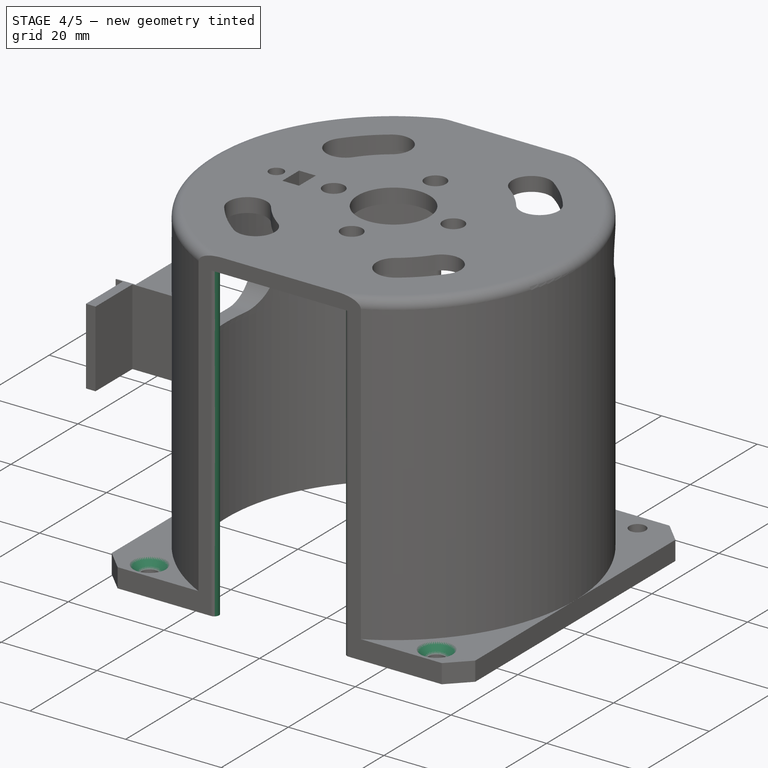
[diagram: stage 4 of 5 — iso view after this stage's code; geometry added in this stage tinted green]
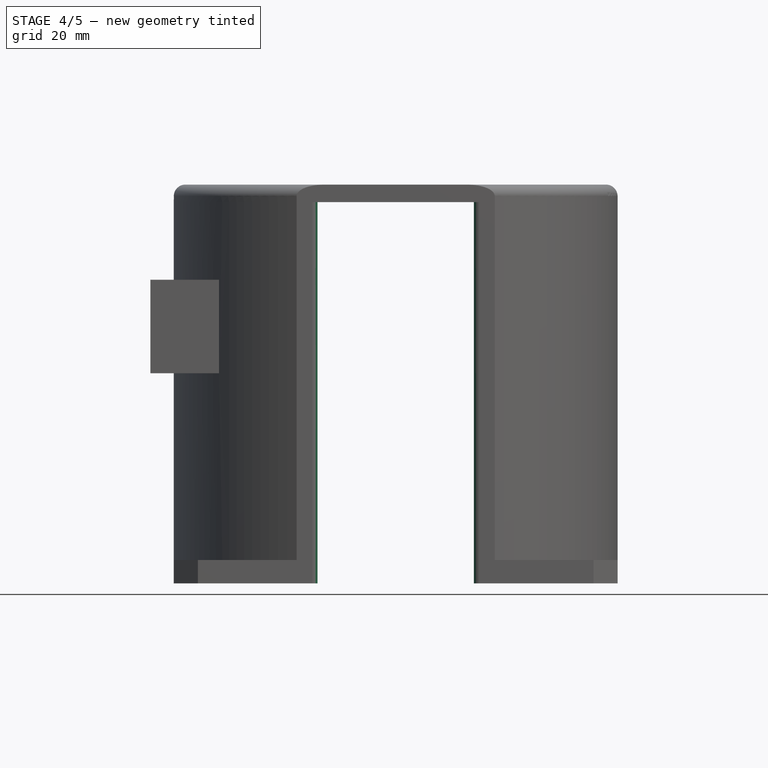
[diagram: stage 4 of 5 — front view after this stage's code; geometry added in this stage tinted green]
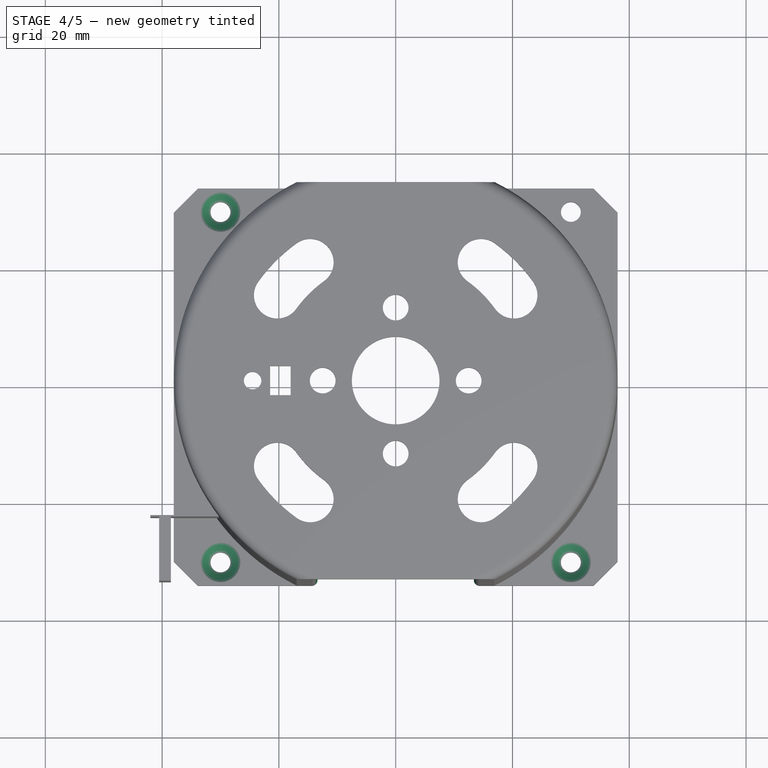
[diagram: stage 4 of 5 — top view after this stage's code; geometry added in this stage tinted green]
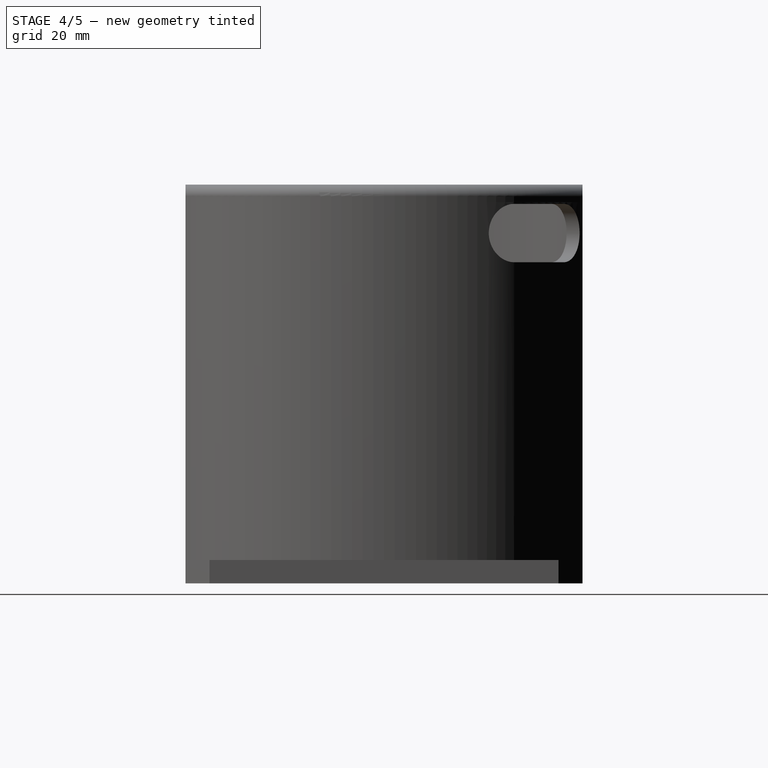
[diagram: stage 4 of 5 — right view after this stage's code; geometry added in this stage tinted green]
FEATURE [PartDesign::Fillet] Fillet004
  Base = -> Fillet003 [Edge155]
  Radius = 1
FEATURE [PartDesign::Fillet] Fillet005
  Base = -> Fillet004 [Edge57]
  Radius = 1
FEATURE [PartDesign::Chamfer] Chamfer
  Base = -> Fillet005 [Edge209]
  Size = 1.7
FEATURE [PartDesign::Chamfer] Chamfer001
  Base = -> Chamfer [Edge71]
  Size = 1.7
FEATURE [PartDesign::Chamfer] Chamfer002
  Base = -> Chamfer001 [Edge248]
  Size = 1.7
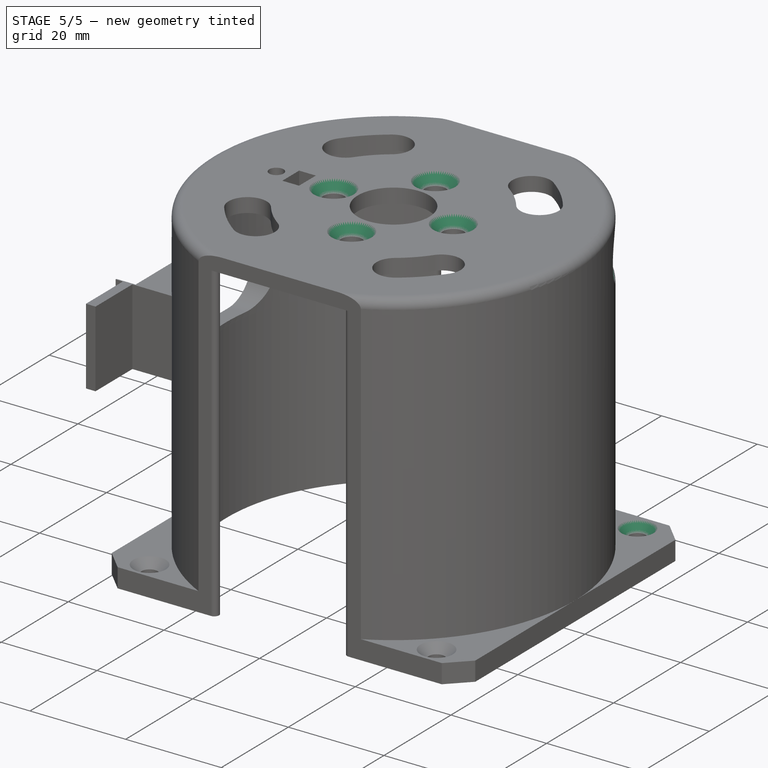
[diagram: stage 5 of 5 — iso view after this stage's code; geometry added in this stage tinted green]
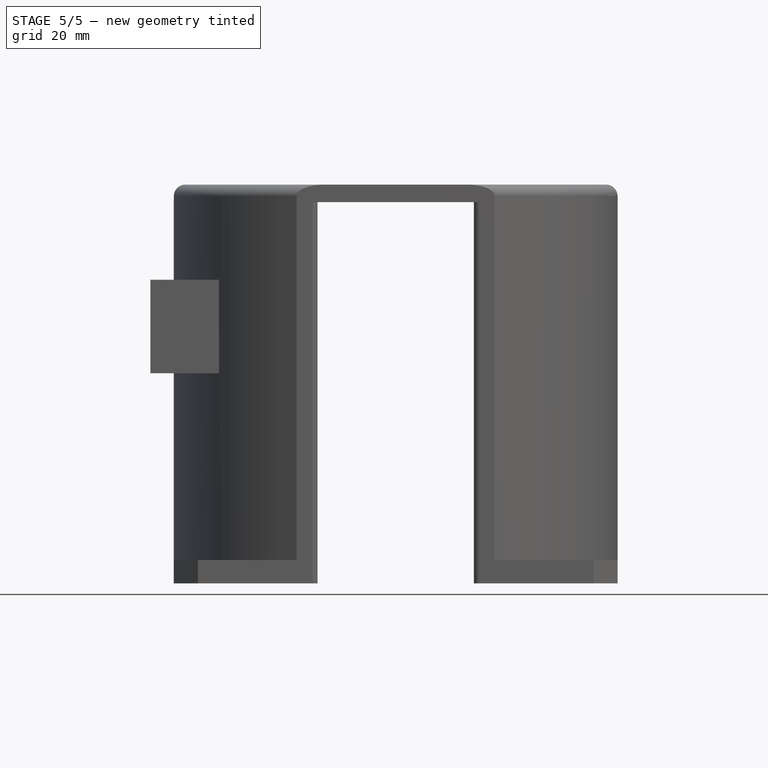
[diagram: stage 5 of 5 — front view after this stage's code; geometry added in this stage tinted green]
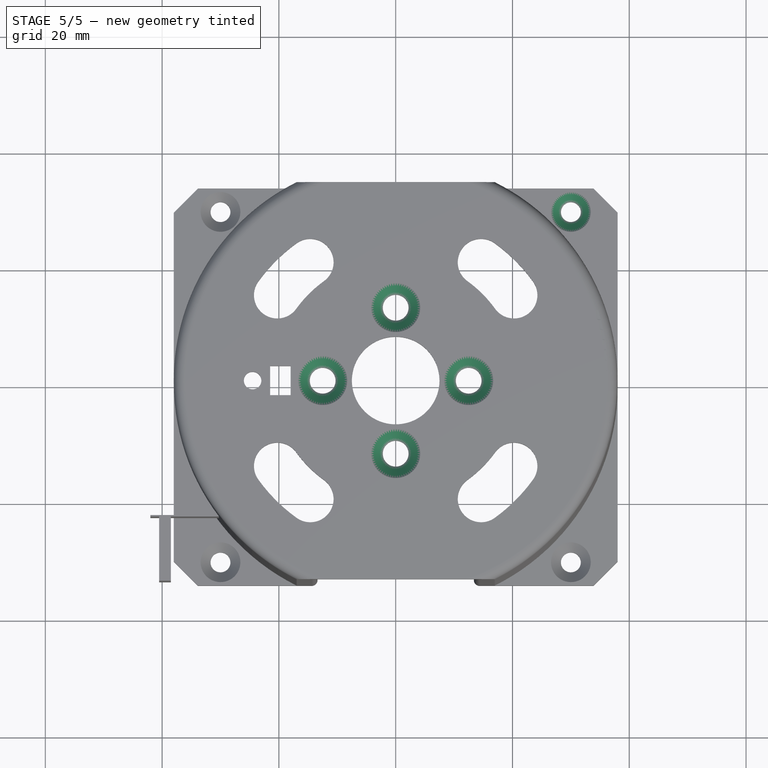
[diagram: stage 5 of 5 — top view after this stage's code; geometry added in this stage tinted green]
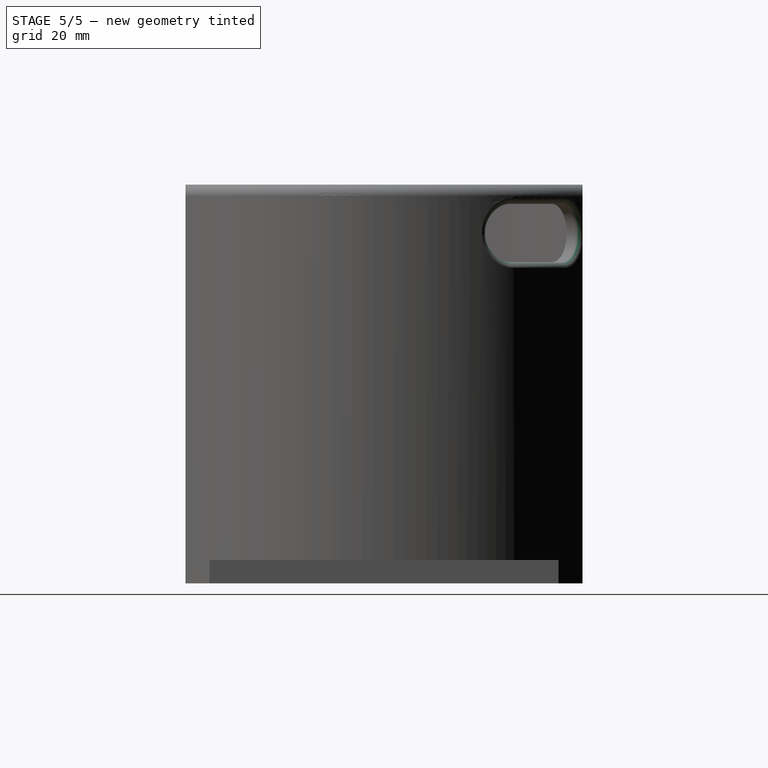
[diagram: stage 5 of 5 — right view after this stage's code; geometry added in this stage tinted green]
FEATURE [PartDesign::Chamfer] Chamfer003
  Base = -> Chamfer002 [Edge207]
  Size = 1.7
FEATURE [PartDesign::Chamfer] Chamfer004
  Base = -> Chamfer003 [Edge125]
  Size = 2
FEATURE [PartDesign::Chamfer] Chamfer005
  Base = -> Chamfer004 [Edge12]
  Size = 2
FEATURE [PartDesign::Chamfer] Chamfer006
  Base = -> Chamfer005 [Edge19]
  Size = 2
FEATURE [PartDesign::Chamfer] Chamfer007
  Base = -> Chamfer006 [Edge13]
  Size = 2
FEATURE [PartDesign::Fillet] Fillet006
  Base = -> Chamfer007 [Edge161]
  Radius = 1
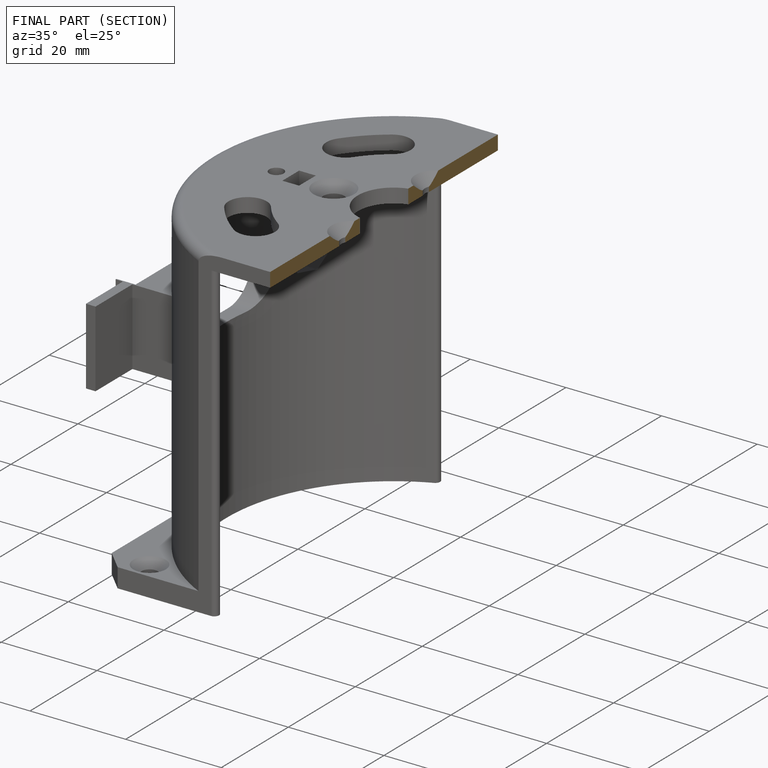
[diagram: finished part — half-section view (interior)]
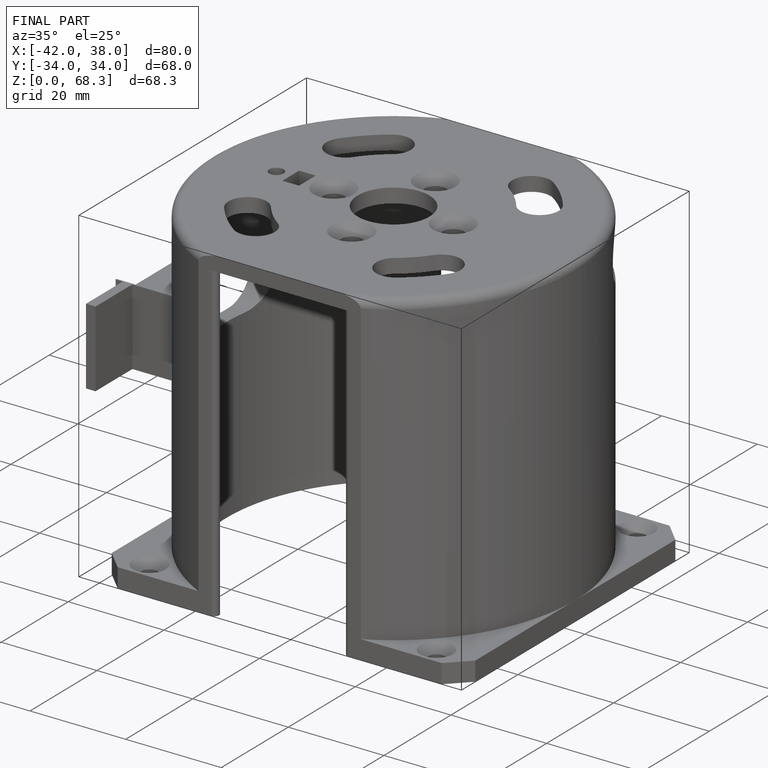
[diagram: finished part — iso view with bounding-box wireframe]
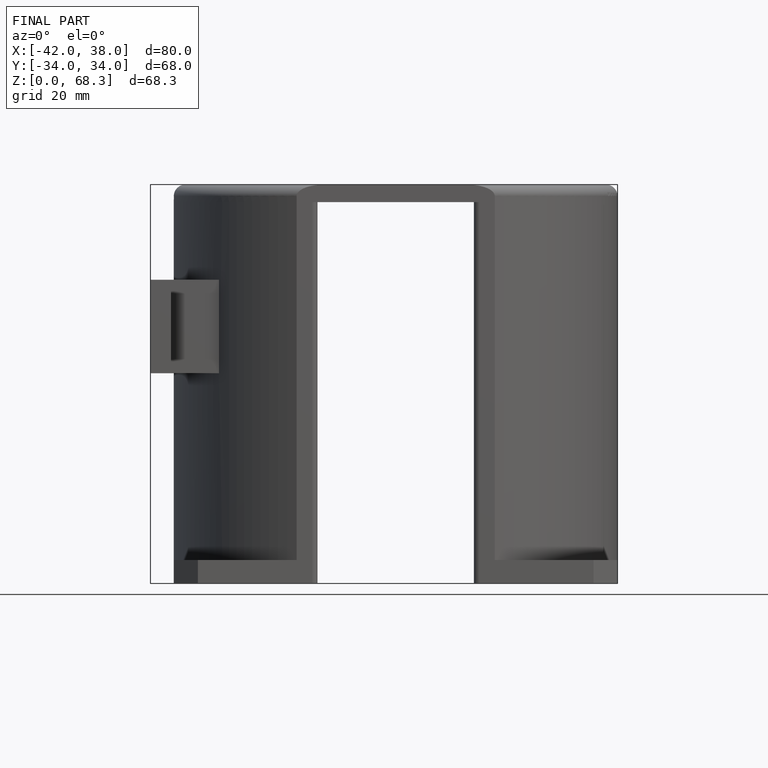
[diagram: finished part — front view with bounding-box wireframe]
